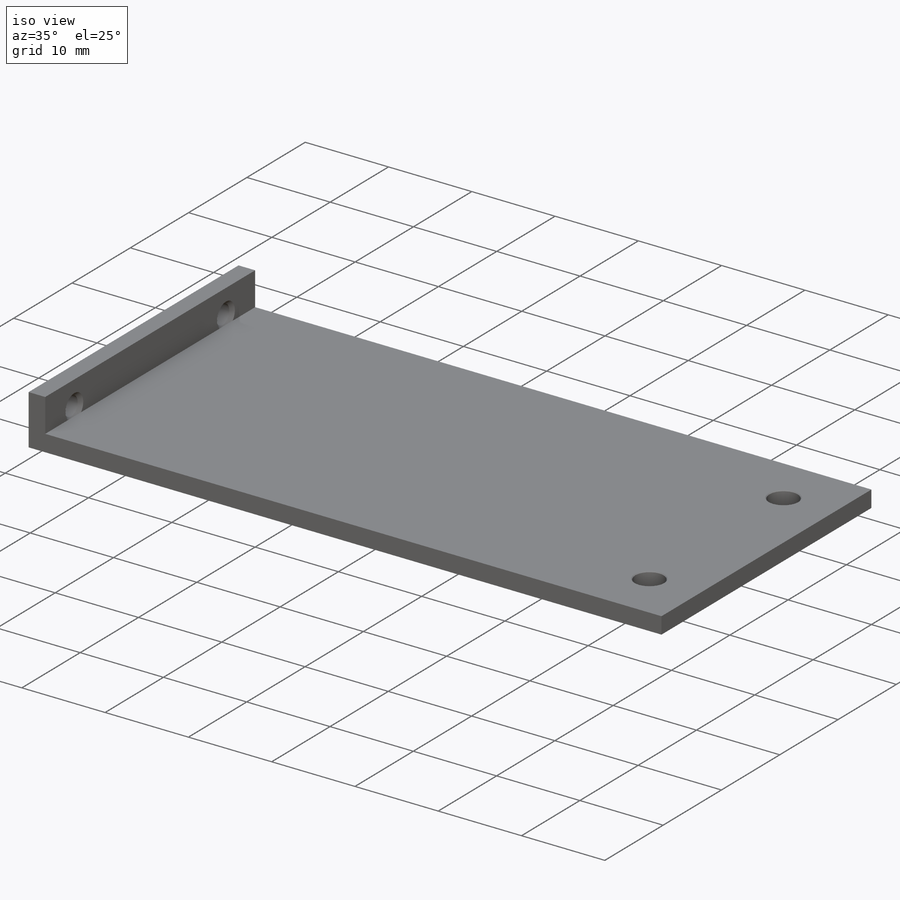
[diagram: iso view]
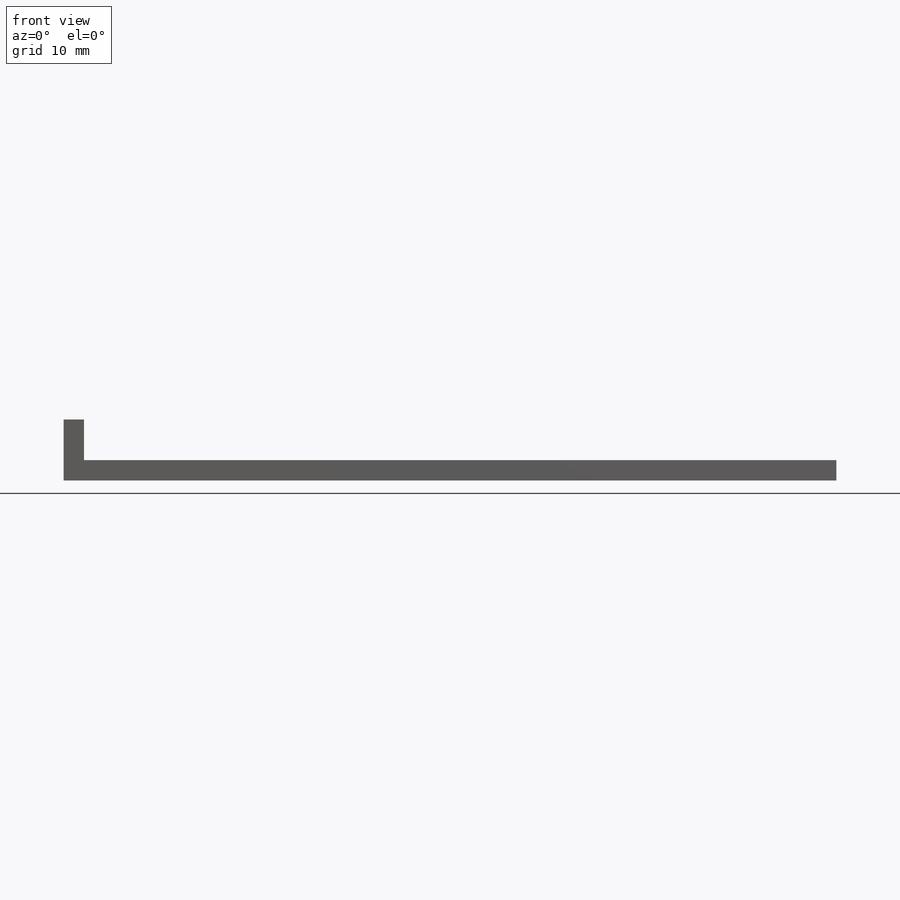
[diagram: front view]
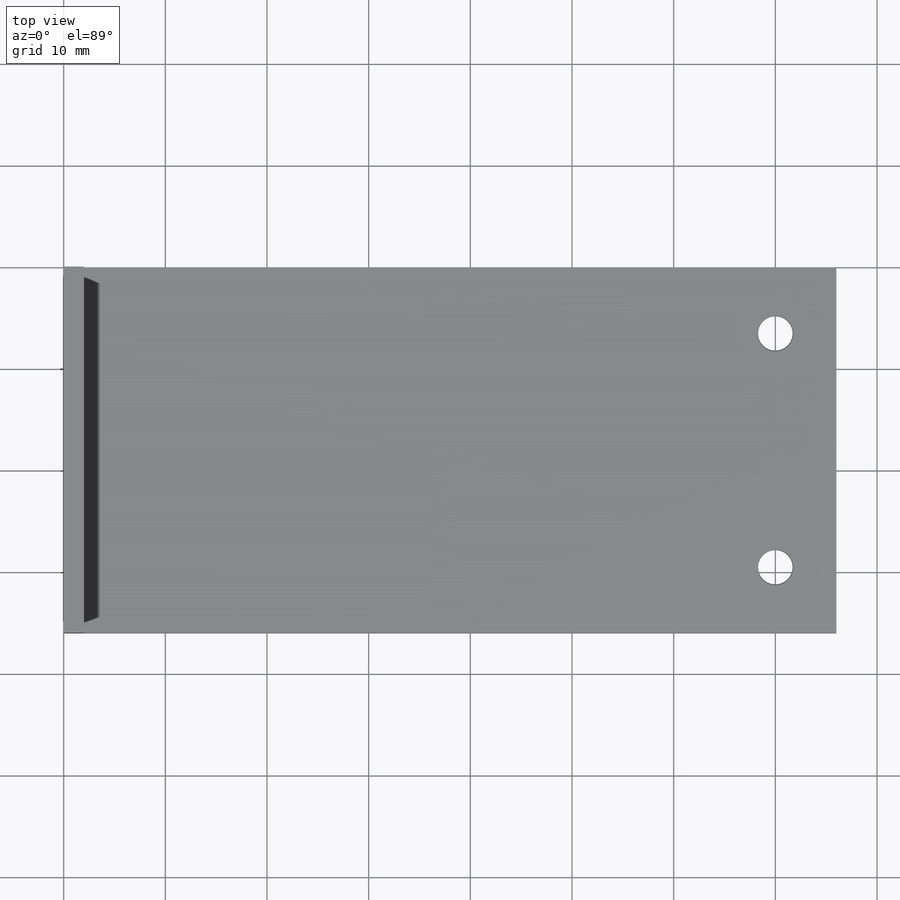
[diagram: top view]
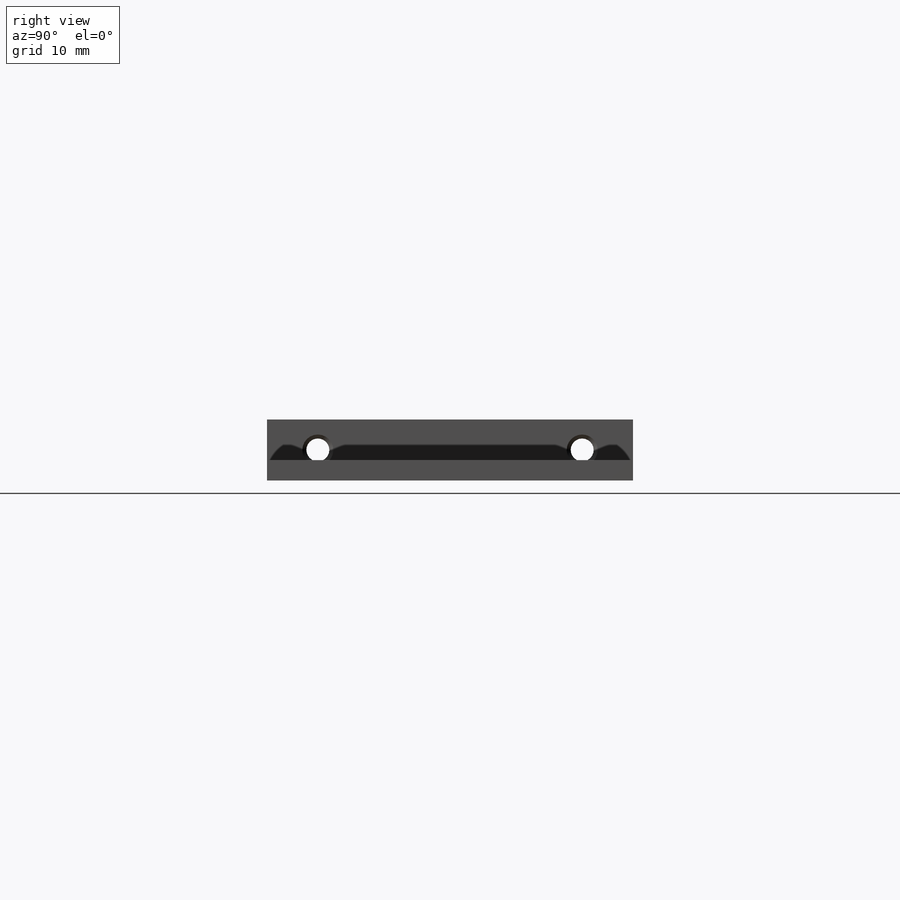
[diagram: right view]
SOLIDWORKS PART (.sldprt)
format: sldprt  version: not decoded by parser v0  size: 273,920 bytes
history: native  units: mm
features: sketch x6, plane x3, hole x2, thread x2, material x1, extrude x1, cut_extrude x1 (+13 scaffold rows collapsed)
feature tree (29):
  scaffold x13  (default folders/planes/origin — collapsed)
  material  "Материал <не указан>"
  plane  "Спереди"
  plane  "Сверху"
  plane  "Справа"
  sketch  "Эскиз1"  dims[D1=80.0mm D2=40.0mm D3=2.0mm]
  extrude  "Бобышка-Вытянуть1"  Depth=36mm
  sketch  "Эскиз2"  dims[D1=6.0mm D2=76.0mm]
  cut_extrude  "Вырез-Вытянуть1"  [1 undecoded]
  hole  "4-40"  [1 undecoded]
  sketch  "Эскиз4"  dims[D1=3.0mm D2=5.0mm D3=26.0mm]
  thread  "Отверстие резьбы1"  Diameter=2.8448mm  [1 undecoded]
  thread  "Отверстие резьбы2"  Diameter=2.8448mm  [1 undecoded]
  sketch  "Эскиз3"  dims[hole-wizard template sketch: 46 standard entries collapsed; hole parameters kept: c15.Диаметр проходного сверла=2.2606mm c15.Глубина проходного сверла=2.0mm c15.Диаметр передней зенковки=3.048mm c15.D4=~3.666174mm c15.Угол передней зенковки=90.0deg c15.Диаметр задней зенковки=3.048mm c15.D6=~9.919017mm c15.Угол задней зенковки=90.0deg]
  hole  "Отверстие под  M3"  [1 undecoded]
  sketch  "Эскиз6"  dims[D1=70.0mm D2=6.5mm D3=23.0mm]
  sketch  "Эскиз5"  dims[hole-wizard template sketch: 47 standard entries collapsed; hole parameters kept: c15.Глубина сквозного отверстия=2.0mm c15.Диаметр передней зенковки=3.6mm c15.D4=~3.666174mm c15.Угол передней зенковки=90.0deg c15.Диаметр задней зенковки=3.6mm c15.D6=~9.919017mm c15.Угол задней зенковки=90.0deg]
decode coverage: 9 of 12 modeling features carry decoded parameters
note: ~ marks probable driven/reference dimensions
note: 5 parameter values undecoded
summary: no parameter record found for 3 features
note: suppression state not decoded; provenance and decode notes live in map.json
